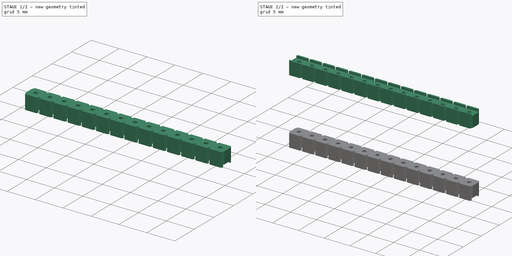
[diagram: build sequence overview — one tinted view per stage of 2, left to right]
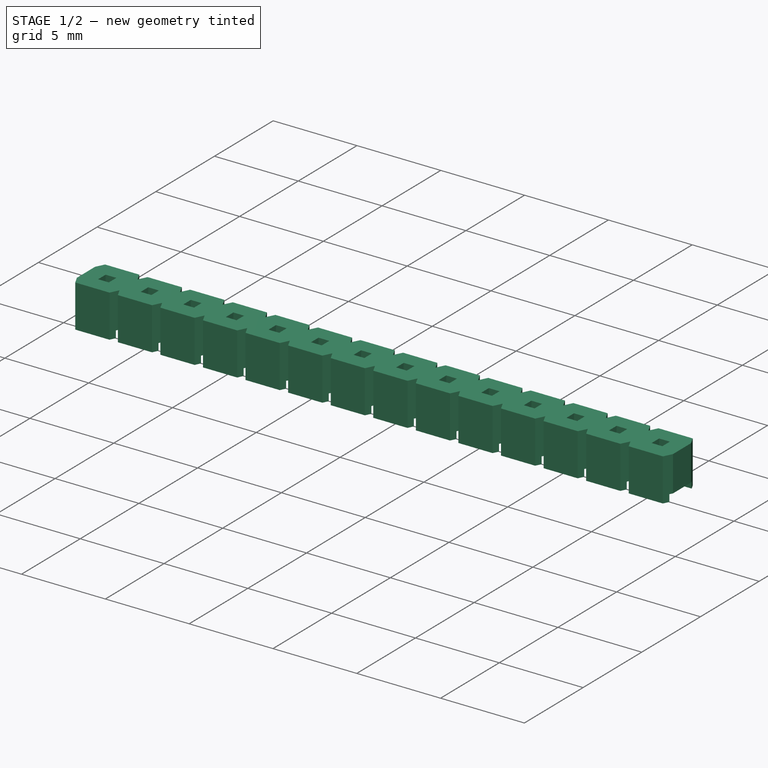
[diagram: stage 1 of 2 — iso view after this stage's code; geometry added in this stage tinted green]
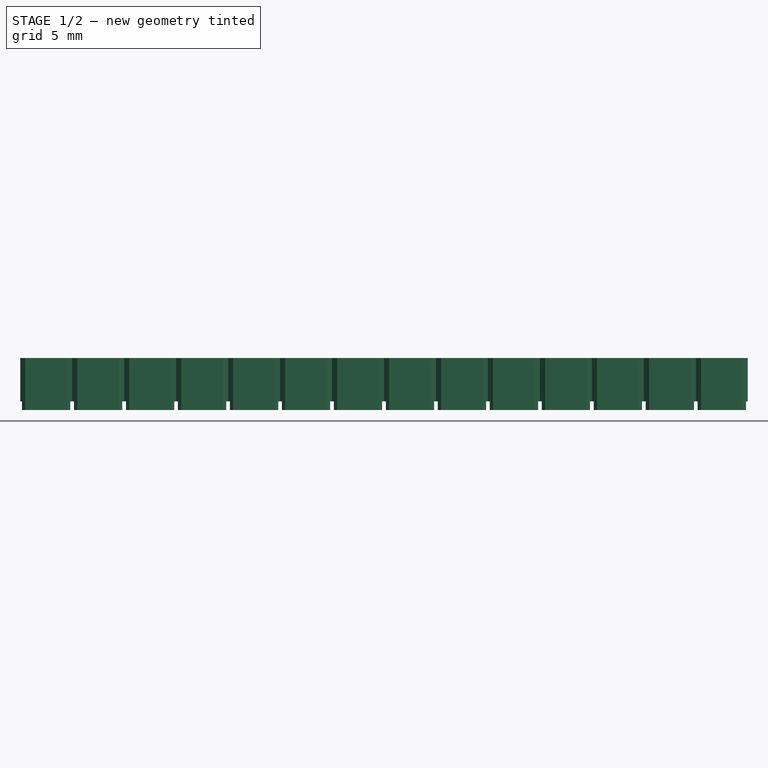
[diagram: stage 1 of 2 — front view after this stage's code; geometry added in this stage tinted green]
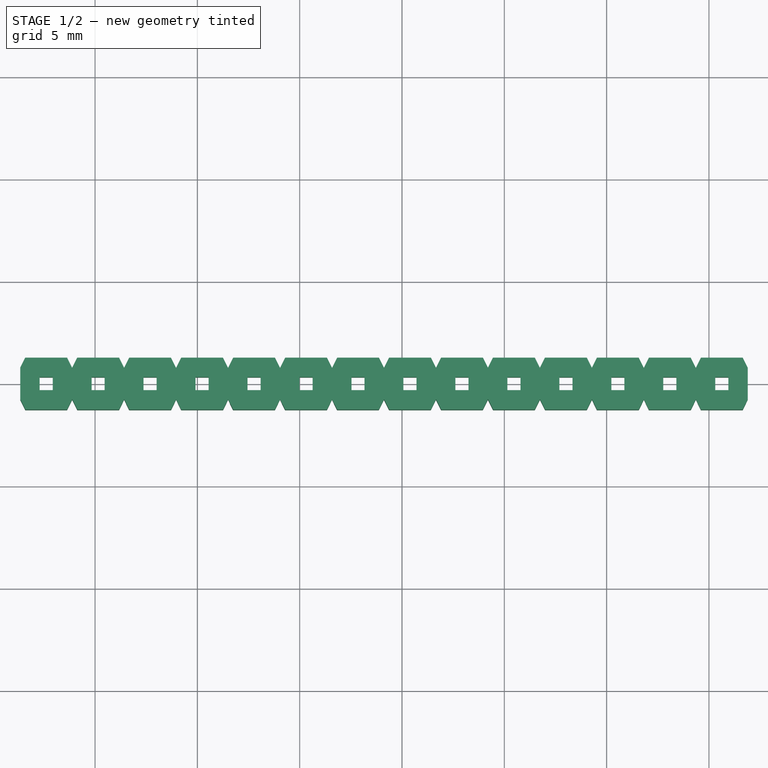
[diagram: stage 1 of 2 — top view after this stage's code; geometry added in this stage tinted green]
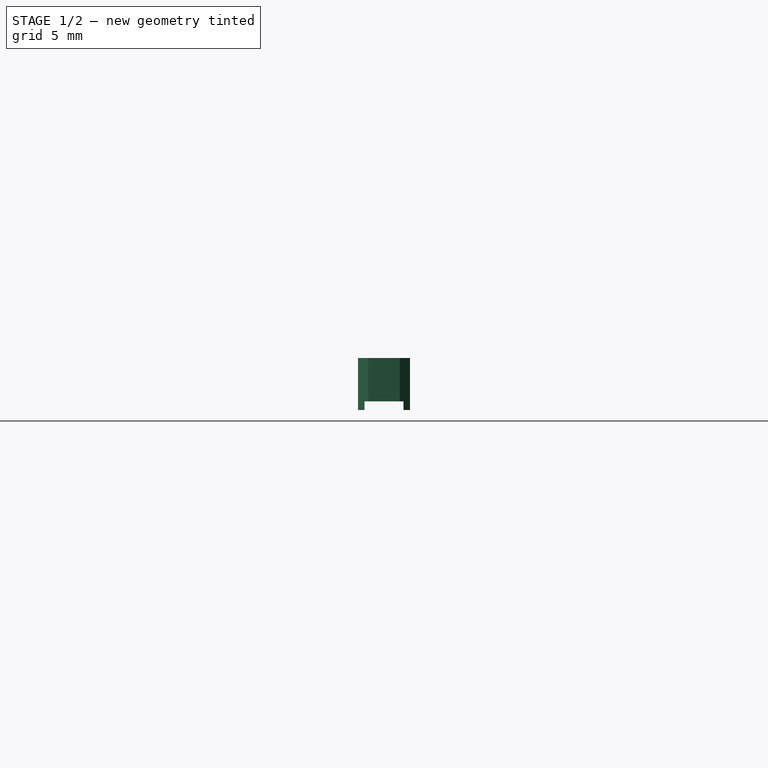
[diagram: stage 1 of 2 — right view after this stage's code; geometry added in this stage tinted green]
FCSTD DOCUMENT  (FreeCAD 2022.709R26244 +5001 (Git))
Label: PinHeader_BoardStacker_2-54mm_15mm_1x14_WE_61303211221
License: Creative Commons Attribution-NoDerivatives
LicenseURL: http://creativecommons.org/licenses/by-nd/4.0/
objects: Part::Feature×16, PartDesign::SubShapeBinder×2, Sketcher::SketchObject×2, PartDesign::Pocket×2, PartDesign::Body×2, App::Part×2
note: 28 computed .brp shape members not serialized (recipe doc carries the construction recipe); baked Part::Feature solids carry a one-line shape summary decoded from their .brp

FEATURE [PartDesign::Body] Body002
  AutoGroupSolids = false
  BaseFeature = -> BaseFeature002
  ClaimAllChildren = false
  ExportMode = 0
  Group = -> [BaseFeature002,Sketch002,Pocket002]
  Origin = -> Origin005
  SingleSolid = true
  Tip = -> Pocket002
  TreeRank = 82
  _ExportChildren = -> [BaseFeature002,Pocket002]
  _GroupVersion = 1
FEATURE [Sketcher::SketchObject] Sketch003
  ArcFitTolerance = 1e-06
  AttachmentSupport = -> [XY_Plane003]
  FullyConstrained = false
  MapMode = 5
  Support = -> [XY_Plane003]
  TreeRank = 97
  sketch-geometry (4):
    g0: LineSegment StartX=-122.023 StartY=4.09673 StartZ=0 EndX=-73.6587 EndY=4.09673 EndZ=0
    g1: LineSegment StartX=-73.6587 StartY=4.09673 StartZ=0 EndX=-73.6587 EndY=-6.34394 EndZ=0
    g2: LineSegment StartX=-73.6587 StartY=-6.34394 StartZ=0 EndX=-122.023 EndY=-6.34394 EndZ=0
    g3: LineSegment StartX=-122.023 StartY=-6.34394 StartZ=0 EndX=-122.023 EndY=4.09673 EndZ=0
  constraints (8):
    c: Coincident(g0,g1)
    c: Coincident(g1,g2)
    c: Coincident(g2,g3)
    c: Coincident(g3,g0)
    c: Horizontal(g0)
    c: Horizontal(g2)
    c: Vertical(g1)
    c: Vertical(g3)
FEATURE [PartDesign::Pocket] Pocket003
  AddSubType = 1
  BaseFeature = -> BaseFeature003
  CheckUpToFaceLimits = true
  ClaimChildren = false
  Fit = 0
  FitJoin = 0
  InnerFit = 0
  InnerFitJoin = 0
  InnerTaperAngle = 0
  InnerTaperAngleRev = 0
  Length = 5
  Length2 = 100
  Linearize = true
  NewSolid = false
  Profile = -> Sketch003
  Refine = true
  Reversed = true
  Suppress = false
  TreeRank = 98
  Type = 1
  _ProfileBasedVersion = 1
  _Version = 1
FEATURE [PartDesign::Body] Body003
  AutoGroupSolids = false
  BaseFeature = -> BaseFeature003
  ClaimAllChildren = false
  ExportMode = 0
  Group = -> [BaseFeature003,Sketch003,Pocket003]
  Origin = -> Origin006
  SingleSolid = true
  Tip = -> Pocket003
  TreeRank = 95
  _ExportChildren = -> [BaseFeature003,Pocket003]
  _GroupVersion = 1
FEATURE [App::Part] Assem002  label="Assembly"
  ClaimAllChildren = false
  ExportMode = 1
  Group = -> [Part__Feature016,Part__Feature017,Part__Feature018,Part__Feature019,Part__Feature020,Part__Feature021,Part__Feature022,Part__Feature023,Part__Feature024,Part__Feature025,Part__Feature026,Part__Feature027,Part__Feature028,Part__Feature029,Part__Feature030,Part__Feature031,Body002,Body003]
  Origin = -> Origin004
  Placement = pos=(39.37,1.7e-15,-7.97) rot=(0,0,1;0rad)
  TreeRank = 102
  _ExportChildren = -> [Part__Feature016,Part__Feature017,Part__Feature018,Part__Feature019,Part__Feature020,Part__Feature021,Part__Feature022,Part__Feature023,Part__Feature024,Part__Feature025,Part__Feature026,Part__Feature027,Part__Feature028,Part__Feature029,Part__Feature030,Part__Feature031,Body002,Body003]
  _GroupVersion = 1
FEATURE [App::Part] Part  label="PinHeader_BoardStacker_2-54mm_15mm_1x14_WE_61303211222"
  ClaimAllChildren = false
  ExportMode = 1
  Group = -> [Assem002]
  Origin = -> Origin003
  TreeRank = 101
  _ExportChildren = -> [Assem002]
  _GroupVersion = 1
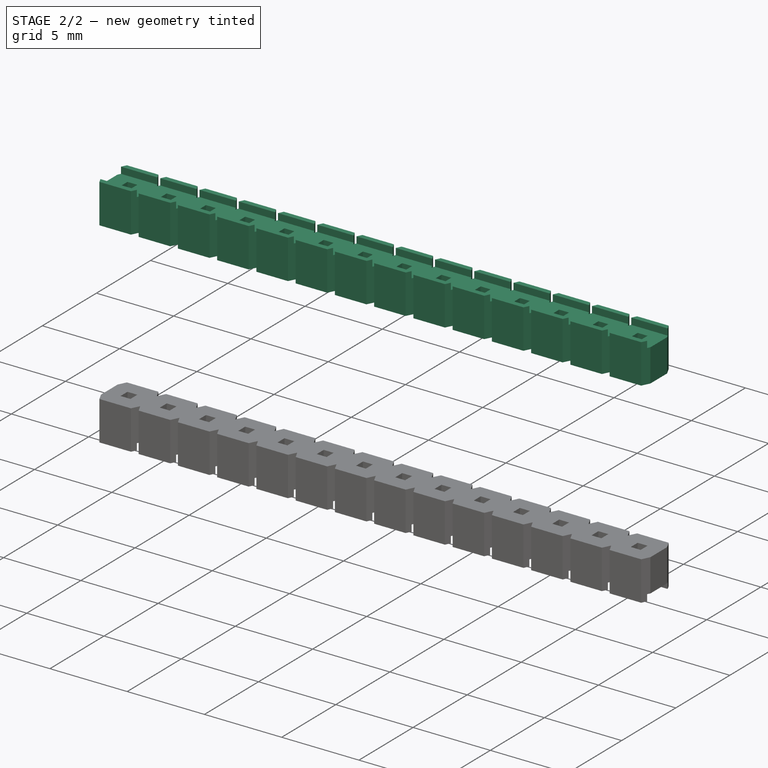
[diagram: stage 2 of 2 — iso view after this stage's code; geometry added in this stage tinted green]
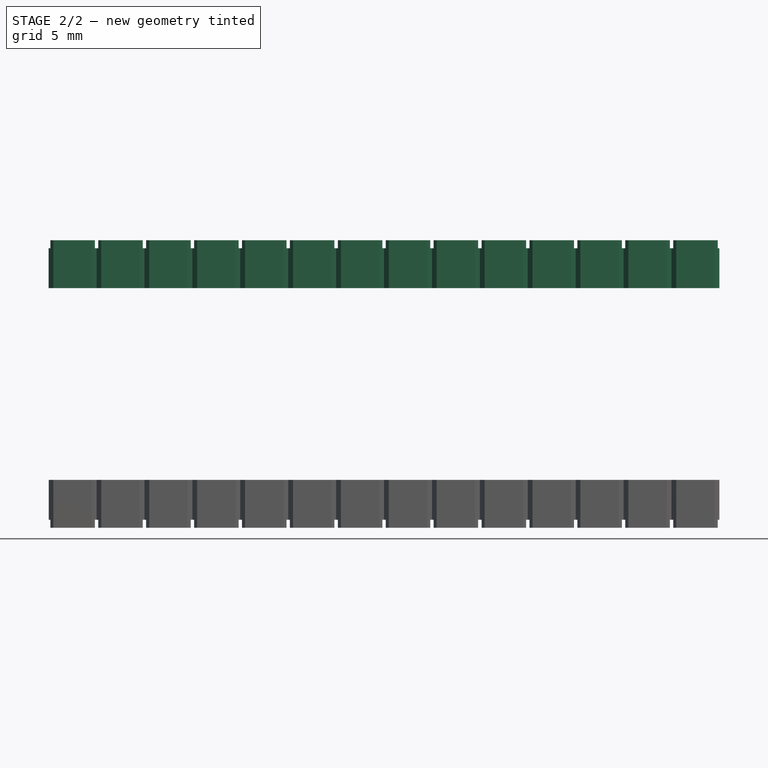
[diagram: stage 2 of 2 — front view after this stage's code; geometry added in this stage tinted green]
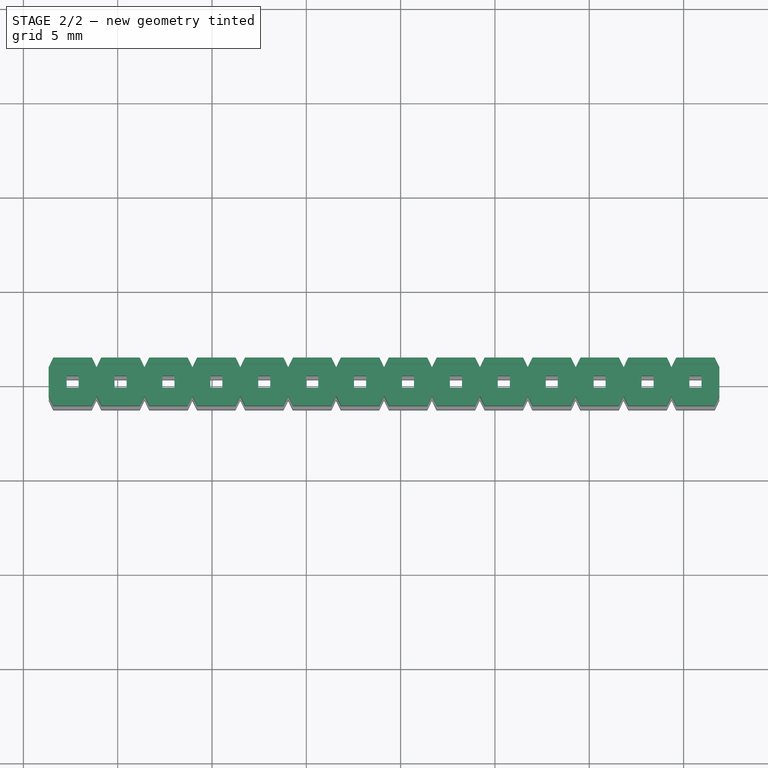
[diagram: stage 2 of 2 — top view after this stage's code; geometry added in this stage tinted green]
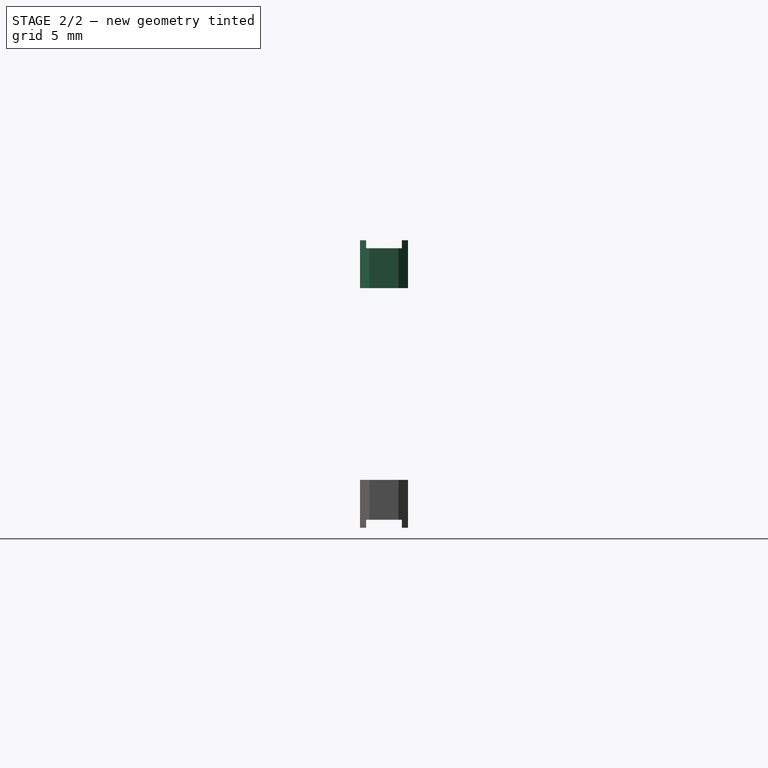
[diagram: stage 2 of 2 — right view after this stage's code; geometry added in this stage tinted green]
FEATURE [PartDesign::SubShapeBinder] BaseFeature002  label="BaseFeature002(6130321xx21)"
  BindCopyOnChange = 0
  BindMode = 0
  ClaimChildren = false
  Context = -> Part [Assem002.Body002.BaseFeature002.]
  FillStyle = 0
  Fuse = false
  MakeFace = true
  OffsetFill = false
  OffsetIntersection = false
  OffsetJoinType = 0
  OffsetOpenResult = false
  PartialLoad = false
  Relative = true
  Support = -> [Part__Feature016]
  TreeRank = 83
  _Version = 8
FEATURE [PartDesign::SubShapeBinder] BaseFeature003  label="BaseFeature003(6130321xx022)"
  BindCopyOnChange = 0
  BindMode = 0
  ClaimChildren = false
  Context = -> Part [Assem002.Body003.BaseFeature003.]
  FillStyle = 0
  Fuse = false
  MakeFace = true
  OffsetFill = false
  OffsetIntersection = false
  OffsetJoinType = 0
  OffsetOpenResult = false
  PartialLoad = false
  Relative = true
  Support = -> [Part__Feature017]
  TreeRank = 96
  _Version = 8
FEATURE [Part::Feature] Part__Feature016  label="6130321xx023"
  Placement = pos=(-78.74,-4e-16,21.94) rot=(0,1,0;3.14159rad)
  TreeRank = 37
  shape: bbox 81.28 x 2.54 x 2.54 mm, 452 faces (baked)
FEATURE [Part::Feature] Part__Feature017  label="6130321xx024"
  Placement = pos=(-78.74,-4.8e-15,9.24) rot=(0,0,1;3.14159rad)
  TreeRank = 38
  shape: bbox 81.28 x 2.54 x 2.54 mm, 452 faces (baked)
FEATURE [Part::Feature] Part__Feature018  label="61303211221014"
  Placement = pos=(-39.37,-1.7e-15,15.59) rot=(0,0,1;0rad)
  TreeRank = 39
  shape: bbox 0.64 x 0.64 x 21.24 mm, 14 faces (baked)
FEATURE [Part::Feature] Part__Feature019  label="61303211221001001"
  Placement = pos=(-41.91,-1.7e-15,15.59) rot=(0,0,1;0rad)
  TreeRank = 40
  shape: bbox 0.64 x 0.64 x 21.24 mm, 14 faces (baked)
FEATURE [Part::Feature] Part__Feature020  label="61303211221002001"
  Placement = pos=(-44.45,-1.7e-15,15.59) rot=(0,0,1;0rad)
  TreeRank = 41
  shape: bbox 0.64 x 0.64 x 21.24 mm, 14 faces (baked)
FEATURE [Part::Feature] Part__Feature021  label="61303211221003001"
  Placement = pos=(-46.99,-1.7e-15,15.59) rot=(0,0,1;0rad)
  TreeRank = 42
  shape: bbox 0.64 x 0.64 x 21.24 mm, 14 faces (baked)
FEATURE [Part::Feature] Part__Feature022  label="61303211221004001"
  Placement = pos=(-49.53,-1.7e-15,15.59) rot=(0,0,1;0rad)
  TreeRank = 43
  shape: bbox 0.64 x 0.64 x 21.24 mm, 14 faces (baked)
FEATURE [Part::Feature] Part__Feature023  label="61303211221005001"
  Placement = pos=(-52.07,-1.8e-15,15.59) rot=(0,0,1;0rad)
  TreeRank = 44
  shape: bbox 0.64 x 0.64 x 21.24 mm, 14 faces (baked)
FEATURE [Part::Feature] Part__Feature024  label="61303211221006001"
  Placement = pos=(-54.61,-1.8e-15,15.59) rot=(0,0,1;0rad)
  TreeRank = 45
  shape: bbox 0.64 x 0.64 x 21.24 mm, 14 faces (baked)
FEATURE [Part::Feature] Part__Feature025  label="61303211221007001"
  Placement = pos=(-57.15,-1.8e-15,15.59) rot=(0,0,1;0rad)
  TreeRank = 46
  shape: bbox 0.64 x 0.64 x 21.24 mm, 14 faces (baked)
FEATURE [Part::Feature] Part__Feature026  label="61303211221008001"
  Placement = pos=(-59.69,-1.8e-15,15.59) rot=(0,0,1;0rad)
  TreeRank = 47
  shape: bbox 0.64 x 0.64 x 21.24 mm, 14 faces (baked)
FEATURE [Part::Feature] Part__Feature027  label="61303211221009001"
  Placement = pos=(-62.23,-1.8e-15,15.59) rot=(0,0,1;0rad)
  TreeRank = 48
  shape: bbox 0.64 x 0.64 x 21.24 mm, 14 faces (baked)
FEATURE [Part::Feature] Part__Feature028  label="61303211221010001"
  Placement = pos=(-64.77,-1.8e-15,15.59) rot=(0,0,1;0rad)
  TreeRank = 49
  shape: bbox 0.64 x 0.64 x 21.24 mm, 14 faces (baked)
FEATURE [Part::Feature] Part__Feature029  label="61303211221011001"
  Placement = pos=(-67.31,-1.8e-15,15.59) rot=(0,0,1;0rad)
  TreeRank = 50
  shape: bbox 0.64 x 0.64 x 21.24 mm, 14 faces (baked)
FEATURE [Part::Feature] Part__Feature030  label="61303211221012001"
  Placement = pos=(-69.85,-1.9e-15,15.59) rot=(0,0,1;0rad)
  TreeRank = 51
  shape: bbox 0.64 x 0.64 x 21.24 mm, 14 faces (baked)
FEATURE [Part::Feature] Part__Feature031  label="61303211221013001"
  Placement = pos=(-72.39,-1.9e-15,15.59) rot=(0,0,1;0rad)
  TreeRank = 52
  shape: bbox 0.64 x 0.64 x 21.24 mm, 14 faces (baked)
FEATURE [Sketcher::SketchObject] Sketch002
  ArcFitTolerance = 1e-06
  AttachmentSupport = -> [XY_Plane002]
  FullyConstrained = false
  MapMode = 5
  Support = -> [XY_Plane002]
  TreeRank = 84
  sketch-geometry (4):
    g0: LineSegment StartX=-73.6651 StartY=2.5392 StartZ=0 EndX=-123.752 EndY=2.5392 EndZ=0
    g1: LineSegment StartX=-123.752 StartY=2.5392 StartZ=0 EndX=-123.752 EndY=-3.31223 EndZ=0
    g2: LineSegment StartX=-123.752 StartY=-3.31223 StartZ=0 EndX=-73.6651 EndY=-3.31223 EndZ=0
    g3: LineSegment StartX=-73.6651 StartY=-3.31223 StartZ=0 EndX=-73.6651 EndY=2.5392 EndZ=0
  constraints (8):
    c: Coincident(g0,g1)
    c: Coincident(g1,g2)
    c: Coincident(g2,g3)
    c: Coincident(g3,g0)
    c: Horizontal(g0)
    c: Horizontal(g2)
    c: Vertical(g1)
    c: Vertical(g3)
FEATURE [PartDesign::Pocket] Pocket002
  AddSubType = 1
  BaseFeature = -> BaseFeature002
  CheckUpToFaceLimits = true
  ClaimChildren = false
  Fit = 0
  FitJoin = 0
  InnerFit = 0
  InnerFitJoin = 0
  InnerTaperAngle = 0
  InnerTaperAngleRev = 0
  Length = 5
  Length2 = 100
  Linearize = true
  NewSolid = false
  Profile = -> Sketch002
  Refine = true
  Reversed = true
  Suppress = false
  TreeRank = 85
  Type = 1
  _ProfileBasedVersion = 1
  _Version = 1
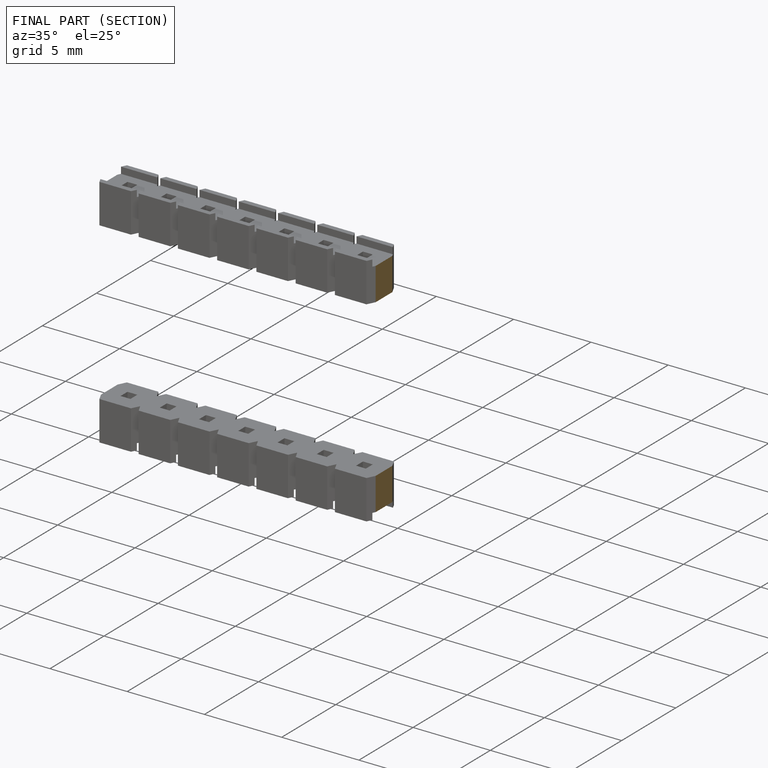
[diagram: finished part — half-section view (interior)]
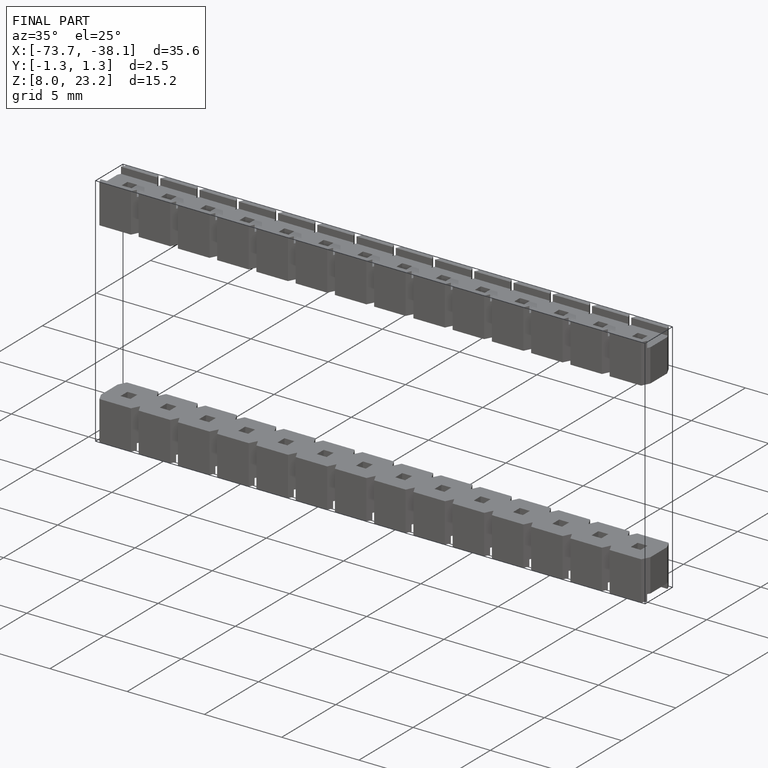
[diagram: finished part — iso view with bounding-box wireframe]
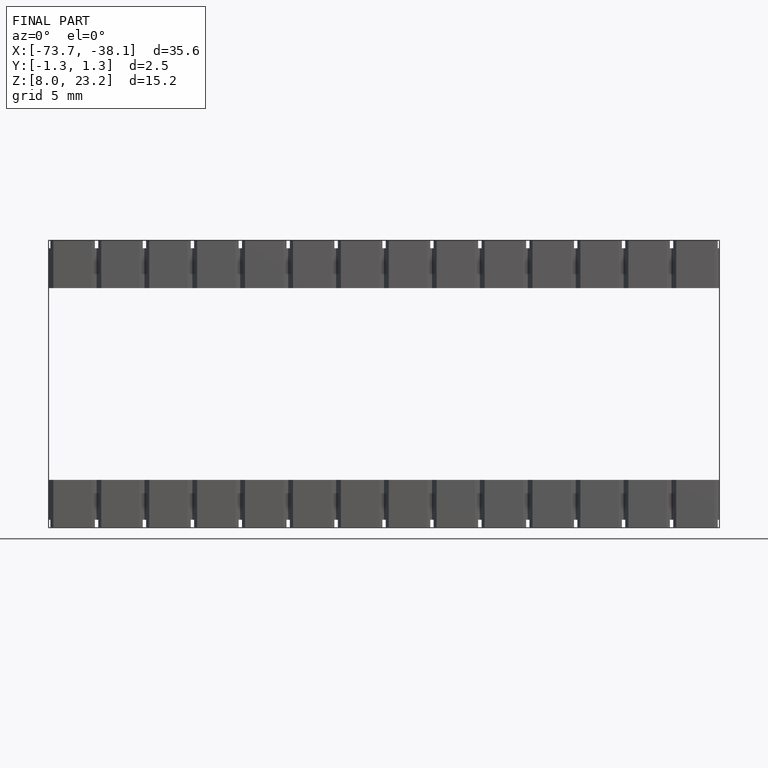
[diagram: finished part — front view with bounding-box wireframe]
